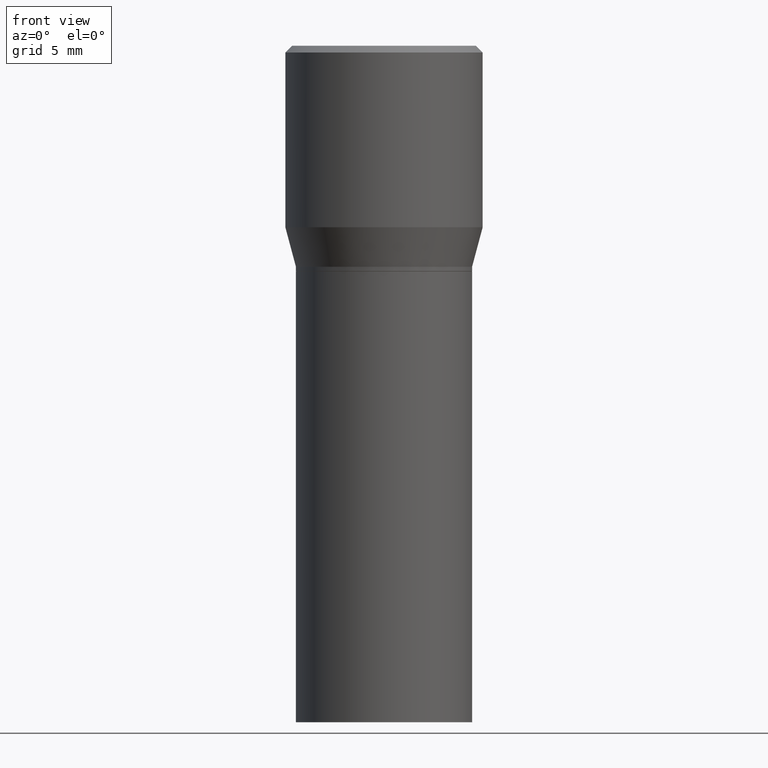
[diagram: clean part render]
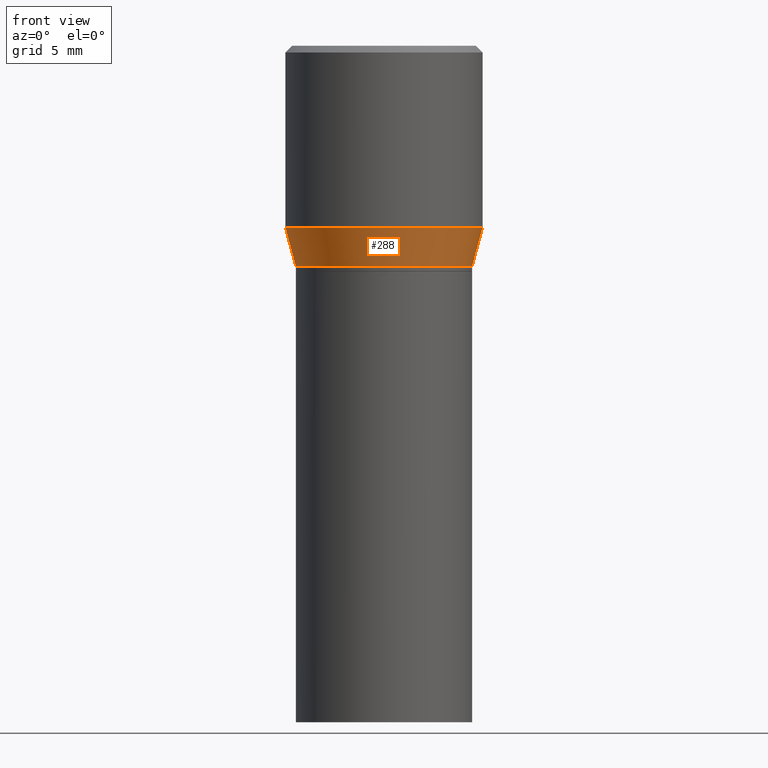
[diagram: same view with one face highlighted and labeled with its STEP entity id]
A machine part, front view. The second image highlights one B-rep face of the part: STEP entity #288.
In plain terms, the highlighted conical surface has half-angle 15 deg.
Its self-contained STEP definition (entity closure, byte-faithful):
#3 = CARTESIAN_POINT ( 'NONE',  ( -0.1952999999999999736, -3.231358930936662090E-16, -0.4900000000000001021 ) ) ;
#5 = DIRECTION ( 'NONE',  ( 1.000000000000000000, -6.982962677686265922E-15, 0.000000000000000000 ) ) ;
#14 = EDGE_CURVE ( 'NONE', #396, #152, #409, .T. ) ;
#16 = CARTESIAN_POINT ( 'NONE',  ( -0.1952999999999999736, -8.704348440421619739E-17, -0.4900000000000001021 ) ) ;
#27 = DIRECTION ( 'NONE',  ( -2.445468806185136597E-29, 3.491481338843145583E-15, 1.000000000000000000 ) ) ;
#36 = EDGE_CURVE ( 'NONE', #396, #263, #356, .T. ) ;
#45 = AXIS2_PLACEMENT_3D ( 'NONE', #68, #27, #64 ) ;
#64 = DIRECTION ( 'NONE',  ( 1.000000000000000000, -6.982962677686266711E-15, 0.000000000000000000 ) ) ;
#68 = CARTESIAN_POINT ( 'NONE',  ( 9.842606206466859638E-30, -1.405263310189985589E-15, -0.4024834085625100810 ) ) ;
#99 = DIRECTION ( 'NONE',  ( 1.000000000000000000, -6.982962677686265922E-15, 0.000000000000000000 ) ) ;
#115 = CIRCLE ( 'NONE', #45, 0.2187500000000000000 ) ;
#122 = CARTESIAN_POINT ( 'NONE',  ( 0.1952999999999999736, -3.074598466985269231E-15, -0.4900000000000001021 ) ) ;
#129 = AXIS2_PLACEMENT_3D ( 'NONE', #267, #411, #5 ) ;
#142 = CARTESIAN_POINT ( 'NONE',  ( 1.198279715030717173E-29, -1.710825856033141537E-15, -0.4900000000000001021 ) ) ;
#151 = CARTESIAN_POINT ( 'NONE',  ( 0.1952999999999999736, -3.074598466985269231E-15, -0.4900000000000001021 ) ) ;
#152 = VERTEX_POINT ( 'NONE', #327 ) ;
#167 = CARTESIAN_POINT ( 'NONE',  ( 0.2187500000000000000, -2.932786395933856235E-15, -0.4024834085625100810 ) ) ;
#180 = ORIENTED_EDGE ( 'NONE', *, *, #14, .F. ) ;
#182 = FACE_OUTER_BOUND ( 'NONE', #289, .T. ) ;
#189 = ORIENTED_EDGE ( 'NONE', *, *, #374, .T. ) ;
#194 = CONICAL_SURFACE ( 'NONE', #357, 0.1952999999999999736, 0.2617993877991501295 ) ;
#212 = VECTOR ( 'NONE', #272, 39.37007874015747433 ) ;
#263 = VERTEX_POINT ( 'NONE', #151 ) ;
#267 = CARTESIAN_POINT ( 'NONE',  ( 1.198279715030717173E-29, -1.710825856033141537E-15, -0.4900000000000001021 ) ) ;
#272 = DIRECTION ( 'NONE',  ( 0.2588190451025214611, 1.565188264969621573E-15, 0.9659258262890682012 ) ) ;
#288 = ADVANCED_FACE ( 'NONE', ( #182 ), #194, .T. ) ;
#289 = EDGE_LOOP ( 'NONE', ( #180, #385, #189, #328 ) ) ;
#299 = LINE ( 'NONE', #122, #212 ) ;
#327 = CARTESIAN_POINT ( 'NONE',  ( -0.2187500000000000000, 1.490489242852337896E-16, -0.4024834085625100810 ) ) ;
#328 = ORIENTED_EDGE ( 'NONE', *, *, #417, .F. ) ;
#333 = VECTOR ( 'NONE', #338, 39.37007874015747433 ) ;
#338 = DIRECTION ( 'NONE',  ( -0.2588190451025214611, 5.211531920934551042E-15, 0.9659258262890682012 ) ) ;
#356 = CIRCLE ( 'NONE', #129, 0.1952999999999999736 ) ;
#357 = AXIS2_PLACEMENT_3D ( 'NONE', #142, #424, #99 ) ;
#374 = EDGE_CURVE ( 'NONE', #263, #407, #299, .T. ) ;
#385 = ORIENTED_EDGE ( 'NONE', *, *, #36, .T. ) ;
#396 = VERTEX_POINT ( 'NONE', #16 ) ;
#407 = VERTEX_POINT ( 'NONE', #167 ) ;
#409 = LINE ( 'NONE', #3, #333 ) ;
#411 = DIRECTION ( 'NONE',  ( -2.445468806185136597E-29, 3.491481338843145583E-15, 1.000000000000000000 ) ) ;
#417 = EDGE_CURVE ( 'NONE', #152, #407, #115, .T. ) ;
#424 = DIRECTION ( 'NONE',  ( -2.445468806185136597E-29, 3.491481338843145583E-15, 1.000000000000000000 ) ) ;